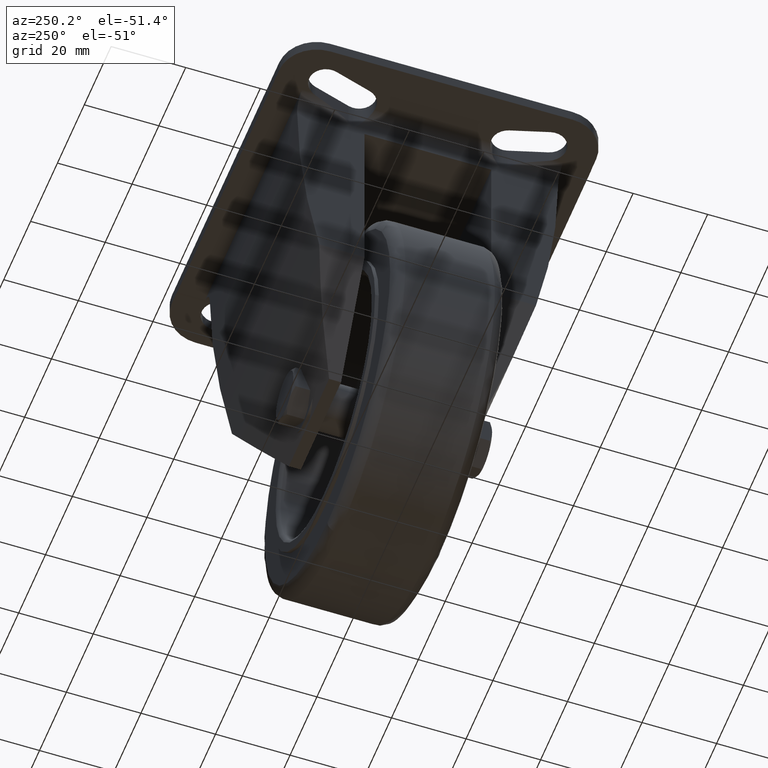
[diagram: clean part render]
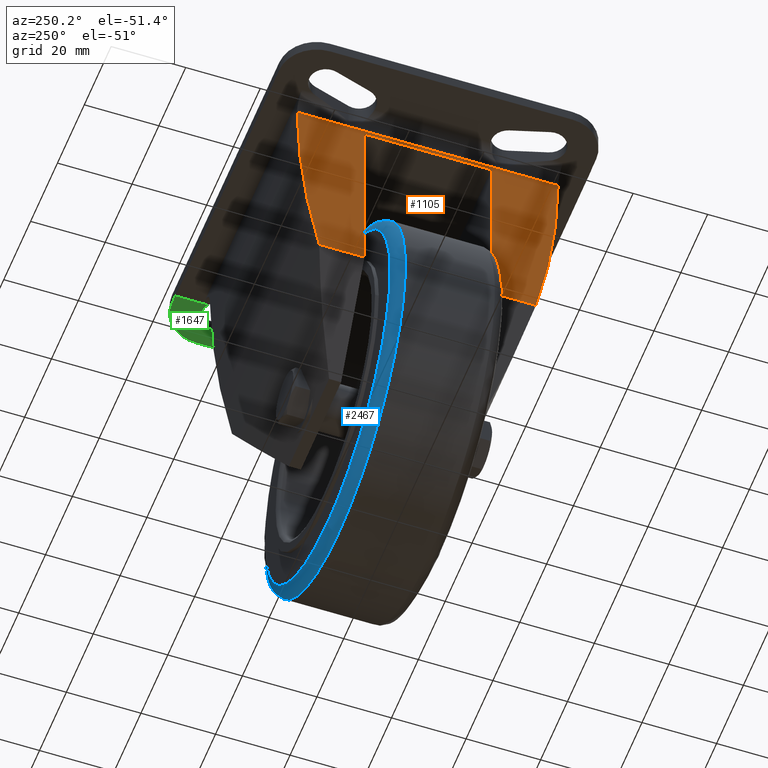
[diagram: same view with three faces highlighted in distinct colors, each labeled with its STEP entity id]
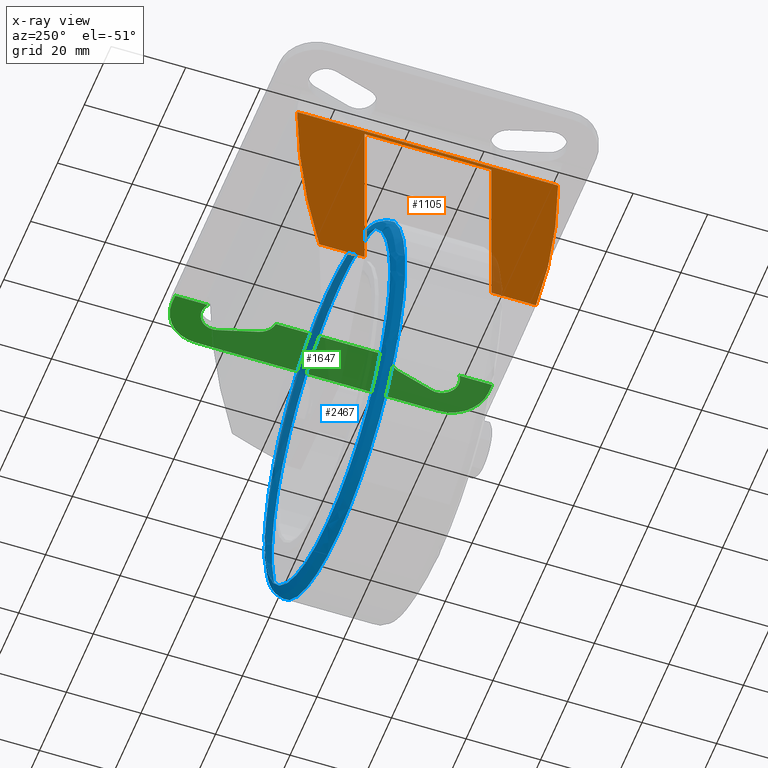
[diagram: x-ray of the same camera — body ghosted, the three highlighted faces saturated]
A machine part, auxiliary view with three faces highlighted in distinct colors.
The next image is the same camera in x-ray (body ghosted, the three faces saturated) — at least one of them is partly hidden behind the body in this view.
Their STEP definitions:

[orange] entity #1105 — the highlighted planar face has unit normal (-1, 0, 0).
#351=CARTESIAN_POINT('',(-82.499999999403371,-20.000010389032809,-8.074899551829729));
#352=VERTEX_POINT('',#351);
#361=CARTESIAN_POINT('',(-82.499999999665306,-34.993228453450087,-8.074899551829729));
#362=VERTEX_POINT('',#361);
#363=CARTESIAN_POINT('',(-82.499999999665306,-20.000010389032809,-8.074899551829729));
#364=DIRECTION('',(0.0,-1.0,0.0));
#365=VECTOR('',#364,14.993218064417277);
#366=LINE('',#363,#365);
#367=EDGE_CURVE('',#352,#362,#366,.T.);
#415=CARTESIAN_POINT('',(-82.499999999665306,35.011934434363553,-8.074899551829732));
#416=VERTEX_POINT('',#415);
#428=CARTESIAN_POINT('',(-82.500000000924047,19.999989617170250,-8.074899551829732));
#429=VERTEX_POINT('',#428);
#430=CARTESIAN_POINT('',(-82.499999999665306,35.011934434363553,-8.074899551829732));
#431=DIRECTION('',(0.0,-1.0,0.0));
#432=VECTOR('',#431,15.011944817193303);
#433=LINE('',#430,#432);
#434=EDGE_CURVE('',#416,#429,#433,.T.);
#506=CARTESIAN_POINT('',(-82.499999999665306,19.999989617170250,-8.074899551829731));
#507=DIRECTION('',(0.0,-1.0,0.0));
#508=VECTOR('',#507,40.000000006203059);
#509=LINE('',#506,#508);
#510=EDGE_CURVE('',#429,#352,#509,.T.);
#545=CARTESIAN_POINT('',(-82.499999999665306,16.929942678674703,-59.074899551626004));
#546=VERTEX_POINT('',#545);
#553=CARTESIAN_POINT('',(-82.499999999665306,29.081470484884729,-59.074899551626004));
#554=VERTEX_POINT('',#553);
#555=CARTESIAN_POINT('',(-82.499999999665306,29.081470484884729,-59.074899551626004));
#556=DIRECTION('',(0.0,-1.0,0.0));
#557=VECTOR('',#556,12.151527806210026);
#558=LINE('',#555,#557);
#559=EDGE_CURVE('',#554,#546,#558,.T.);
#576=CARTESIAN_POINT('',(-82.499999999665306,-17.070057321325297,-59.074899551626004));
#577=VERTEX_POINT('',#576);
#594=CARTESIAN_POINT('',(-82.499999999665306,-29.062285770848494,-59.074899551626004));
#595=VERTEX_POINT('',#594);
#603=CARTESIAN_POINT('',(-82.499999999665306,-17.070057321325297,-59.074899551626004));
#604=DIRECTION('',(0.0,-1.0,0.0));
#605=VECTOR('',#604,11.992228449523196);
#606=LINE('',#603,#605);
#607=EDGE_CURVE('',#577,#595,#606,.T.);
#662=CARTESIAN_POINT('',(-82.499999999665306,202.663913114905850,-6.281902606507186));
#663=DIRECTION('',(1.0,0.0,0.0));
#664=DIRECTION('',(0.0,-0.999921285445875,0.012546828773404));
#665=AXIS2_PLACEMENT_3D('',#662,#663,#664);
#666=CIRCLE('',#665,237.663905077080470);
#667=EDGE_CURVE('',#362,#595,#666,.T.);
#728=CARTESIAN_POINT('',(-82.499999999665306,-202.663913110853170,-6.281902606507174));
#729=DIRECTION('',(1.0,0.0,0.0));
#730=DIRECTION('',(0.0,0.872165457772618,-0.489211012006353));
#731=AXIS2_PLACEMENT_3D('',#728,#729,#730);
#732=CIRCLE('',#731,237.682610521643000);
#733=EDGE_CURVE('',#554,#416,#732,.T.);
#763=CARTESIAN_POINT('',(-82.499999999665306,-17.070057321325294,-9.299980581860835));
#764=VERTEX_POINT('',#763);
#771=CARTESIAN_POINT('',(-82.499999999665306,16.929942678674706,-9.299980581860838));
#772=VERTEX_POINT('',#771);
#773=CARTESIAN_POINT('',(-82.499999999665306,16.929942678674706,-9.299980581860838));
#774=DIRECTION('',(0.0,-1.0,0.0));
#775=VECTOR('',#774,34.0);
#776=LINE('',#773,#775);
#777=EDGE_CURVE('',#772,#764,#776,.T.);
#810=CARTESIAN_POINT('',(-82.499999999665306,-17.070057321325297,-59.074899551626004));
#811=DIRECTION('',(0.0,0.0,1.0));
#812=VECTOR('',#811,49.774918969765167);
#813=LINE('',#810,#812);
#814=EDGE_CURVE('',#577,#764,#813,.T.);
#832=CARTESIAN_POINT('',(-82.499999999665306,16.929942678674703,-59.074899551626004));
#833=DIRECTION('',(0.0,0.0,1.0));
#834=VECTOR('',#833,49.774918969765167);
#835=LINE('',#832,#834);
#836=EDGE_CURVE('',#546,#772,#835,.T.);
#1088=CARTESIAN_POINT('',(-82.499999999665306,42.499989609830664,-8.074899551829732));
#1089=DIRECTION('',(-1.0,0.0,0.0));
#1090=DIRECTION('',(0.0,0.0,-1.0));
#1091=AXIS2_PLACEMENT_3D('',#1088,#1089,#1090);
#1092=PLANE('',#1091);
#1093=ORIENTED_EDGE('',*,*,#836,.T.);
#1094=ORIENTED_EDGE('',*,*,#777,.T.);
#1095=ORIENTED_EDGE('',*,*,#814,.F.);
#1096=ORIENTED_EDGE('',*,*,#607,.T.);
#1097=ORIENTED_EDGE('',*,*,#667,.F.);
#1098=ORIENTED_EDGE('',*,*,#367,.F.);
#1099=ORIENTED_EDGE('',*,*,#510,.F.);
#1100=ORIENTED_EDGE('',*,*,#434,.F.);
#1101=ORIENTED_EDGE('',*,*,#733,.F.);
#1102=ORIENTED_EDGE('',*,*,#559,.T.);
#1103=EDGE_LOOP('',(#1093,#1094,#1095,#1096,#1097,#1098,#1099,#1100,#1101,#1102));
#1104=FACE_OUTER_BOUND('',#1103,.T.);
#1105=ADVANCED_FACE('',(#1104),#1092,.T.);

[blue] entity #2467 — the highlighted face is a freeform B-spline surface patch.
#1784=CARTESIAN_POINT('',(-49.499989609626937,14.999999999937840,-126.775115933132840));
#1785=VERTEX_POINT('',#1784);
#1786=CARTESIAN_POINT('',(-49.499989609626937,14.999999999937852,-33.375038781330367));
#1787=VERTEX_POINT('',#1786);
#1788=CARTESIAN_POINT('',(-49.499989609626937,14.999999999937847,-80.075077357231748));
#1789=DIRECTION('',(-3.157968E-016,1.0,-1.224647E-016));
#1790=DIRECTION('',(0.0,-1.224647E-016,-1.0));
#1791=AXIS2_PLACEMENT_3D('',#1788,#1789,#1790);
#1792=CIRCLE('',#1791,46.700038575901381);
#1793=EDGE_CURVE('',#1785,#1787,#1792,.T.);
#1795=CARTESIAN_POINT('',(-49.499989609626937,14.999999999937847,-80.075077357231748));
#1796=DIRECTION('',(-3.157968E-016,1.0,-1.224647E-016));
#1797=DIRECTION('',(0.0,-1.224647E-016,-1.0));
#1798=AXIS2_PLACEMENT_3D('',#1795,#1796,#1797);
#1799=CIRCLE('',#1798,46.700038575901381);
#1800=EDGE_CURVE('',#1787,#1785,#1799,.T.);
#1832=CARTESIAN_POINT('',(-49.499989609626937,11.999999999937840,-129.775115933132840));
#1833=VERTEX_POINT('',#1832);
#1840=CARTESIAN_POINT('',(-49.499989609626937,11.999999999937852,-30.375038781330367));
#1841=VERTEX_POINT('',#1840);
#1842=CARTESIAN_POINT('',(-49.499989609626937,11.999999999937847,-80.075077357231748));
#1843=DIRECTION('',(-3.157968E-016,1.0,-1.224647E-016));
#1844=DIRECTION('',(0.0,-1.224647E-016,-1.0));
#1845=AXIS2_PLACEMENT_3D('',#1842,#1843,#1844);
#1846=CIRCLE('',#1845,49.700038575901381);
#1847=EDGE_CURVE('',#1841,#1833,#1846,.T.);
#1849=CARTESIAN_POINT('',(-49.499989609626937,11.999999999937847,-80.075077357231748));
#1850=DIRECTION('',(-3.157968E-016,1.0,-1.224647E-016));
#1851=DIRECTION('',(0.0,-1.224647E-016,-1.0));
#1852=AXIS2_PLACEMENT_3D('',#1849,#1850,#1851);
#1853=CIRCLE('',#1852,49.700038575901381);
#1854=EDGE_CURVE('',#1833,#1841,#1853,.T.);
#2179=CARTESIAN_POINT('',(-49.499989609626937,11.999999999937840,-129.775115933133120));
#2180=CARTESIAN_POINT('',(-49.499989609626937,12.390180643970096,-129.775115933133120));
#2181=CARTESIAN_POINT('',(-49.499989609626930,13.179083451967667,-129.618999604785810));
#2182=CARTESIAN_POINT('',(-49.499989609626937,14.176238734356676,-128.951354667551950));
#2183=CARTESIAN_POINT('',(-49.499989609626937,14.843883671590504,-127.954199385162950));
#2184=CARTESIAN_POINT('',(-49.499989609626937,14.999999999937840,-127.165296577165380));
#2185=CARTESIAN_POINT('',(-49.499989609626937,14.999999999937840,-126.775115933133120));
#2186=CARTESIAN_POINT('',(-52.747626713279402,11.999999999937838,-129.775115933133120));
#2187=CARTESIAN_POINT('',(-52.747626713279402,12.390180643970094,-129.775115933133120));
#2188=CARTESIAN_POINT('',(-52.737425329237155,13.179083451967665,-129.618999604785810));
#2189=CARTESIAN_POINT('',(-52.693798230901727,14.176238734356675,-128.951354667551950));
#2190=CARTESIAN_POINT('',(-52.628639358072192,14.843883671590502,-127.954199385162970));
#2191=CARTESIAN_POINT('',(-52.577088693246942,14.999999999937838,-127.165296577165380));
#2192=CARTESIAN_POINT('',(-52.551592432620282,14.999999999937840,-126.775115933133120));
#2193=CARTESIAN_POINT('',(-59.259826415704723,11.999999999937838,-129.134991146755060));
#2194=CARTESIAN_POINT('',(-59.259826415704723,12.390180643970087,-129.134991146755060));
#2195=CARTESIAN_POINT('',(-59.229169097700677,13.179083451967657,-128.980885559932230));
#2196=CARTESIAN_POINT('',(-59.098060434236487,14.176238734356662,-128.321839732177410));
#2197=CARTESIAN_POINT('',(-58.902244231567465,14.843883671590486,-127.337527574872720));
#2198=CARTESIAN_POINT('',(-58.747323573907337,14.999999999937829,-126.558785649158350));
#2199=CARTESIAN_POINT('',(-58.670701914855115,14.999999999937833,-126.173630439885630));
#2200=CARTESIAN_POINT('',(-67.082761094596691,11.999999999937828,-126.760024867695220));
#2201=CARTESIAN_POINT('',(-67.082761094596691,12.390180643970087,-126.760024867695220));
#2202=CARTESIAN_POINT('',(-67.027530599710602,13.179083451967660,-126.613379456479110));
#2203=CARTESIAN_POINT('',(-66.791332626814693,14.176238734356673,-125.986237712860730));
#2204=CARTESIAN_POINT('',(-66.438561201124529,14.843883671590500,-125.049575622608670));
#2205=CARTESIAN_POINT('',(-66.159464882603800,14.999999999937833,-124.308532210218220));
#2206=CARTESIAN_POINT('',(-66.021427623509908,14.999999999937833,-123.942022175051420));
#2207=CARTESIAN_POINT('',(-72.965853382425522,11.999999999937836,-123.977099329290790));
#2208=CARTESIAN_POINT('',(-72.965853382425522,12.390180643970091,-123.977099329290790));
#2209=CARTESIAN_POINT('',(-72.892143087651519,13.179083451967662,-123.839195563545500));
#2210=CARTESIAN_POINT('',(-72.576914657359637,14.176238734356669,-123.249438220415730));
#2211=CARTESIAN_POINT('',(-72.106107980195162,14.843883671590493,-122.368611275983000));
#2212=CARTESIAN_POINT('',(-71.733627669255796,14.999999999937831,-121.671742029943400));
#2213=CARTESIAN_POINT('',(-71.549403952293062,14.999999999937831,-121.327079939164220));
#2214=CARTESIAN_POINT('',(-77.156265007659925,11.999999999937828,-121.465640681328580));
#2215=CARTESIAN_POINT('',(-77.156265007659925,12.390180643970085,-121.465640681328580));
#2216=CARTESIAN_POINT('',(-77.069391912696219,13.179083451967648,-121.335625837084180));
#2217=CARTESIAN_POINT('',(-76.697871632605484,14.176238734356673,-120.779606146870360));
#2218=CARTESIAN_POINT('',(-76.142990753343383,14.843883671590493,-119.949167780174750));
#2219=CARTESIAN_POINT('',(-75.703994850212638,14.999999999937836,-119.292163629541860));
#2220=CARTESIAN_POINT('',(-75.486873422231085,14.999999999937836,-118.967218275022900));
#2221=CARTESIAN_POINT('',(-81.080196320876851,11.999999999937833,-118.555232925542880));
#2222=CARTESIAN_POINT('',(-81.080196320876851,12.390180643970089,-118.555232925542880));
#2223=CARTESIAN_POINT('',(-80.980997485997051,13.179083451967653,-118.434360170235410));
#2224=CARTESIAN_POINT('',(-80.556765116531892,14.176238734356666,-117.917437411515240));
#2225=CARTESIAN_POINT('',(-79.923156555183056,14.843883671590493,-117.145391926409730));
#2226=CARTESIAN_POINT('',(-79.421874977431344,14.999999999937831,-116.534585503520090));
#2227=CARTESIAN_POINT('',(-79.173947898371836,14.999999999937831,-116.232488919446500));
#2228=CARTESIAN_POINT('',(-85.902510515728565,11.999999999937826,-114.185273008425270));
#2229=CARTESIAN_POINT('',(-85.902510515728565,12.390180643970083,-114.185273008425270));
#2230=CARTESIAN_POINT('',(-85.788163966524749,13.179083451967648,-114.078127045225530));
#2231=CARTESIAN_POINT('',(-85.299151090842884,14.176238734356666,-113.619908096365170));
#2232=CARTESIAN_POINT('',(-84.568790168519570,14.843883671590490,-112.935539175303550));
#2233=CARTESIAN_POINT('',(-83.990962629871817,14.999999999937828,-112.394098365565000));
#2234=CARTESIAN_POINT('',(-83.705176955282255,14.999999999937831,-112.126309074276560));
#2235=CARTESIAN_POINT('',(-91.091389668645718,11.999999999937831,-107.864177520596770));
#2236=CARTESIAN_POINT('',(-91.091389668645718,12.390180643970083,-107.864177520596770));
#2237=CARTESIAN_POINT('',(-90.960743961839626,13.179083451967646,-107.776887200309550));
#2238=CARTESIAN_POINT('',(-90.402026333492842,14.176238734356653,-107.403582620152700));
#2239=CARTESIAN_POINT('',(-89.567558484791562,14.843883671590490,-106.846036815064020));
#2240=CARTESIAN_POINT('',(-88.907366395704898,14.999999999937824,-106.404932546762080));
#2241=CARTESIAN_POINT('',(-88.580844330003742,14.999999999937829,-106.186768349922260));
#2242=CARTESIAN_POINT('',(-95.712573632165999,11.999999999937824,-99.217263162531026));
#2243=CARTESIAN_POINT('',(-95.712573632165999,12.390180643970083,-99.217263162531026));
#2244=CARTESIAN_POINT('',(-95.567411995520104,13.179083451967657,-99.157134280339037));
#2245=CARTESIAN_POINT('',(-94.946615741770316,14.176238734356671,-98.899987931831106));
#2246=CARTESIAN_POINT('',(-94.019430902656964,14.843883671590490,-98.515929242156744));
#2247=CARTESIAN_POINT('',(-93.285885449879785,14.999999999937826,-98.212079897855915));
#2248=CARTESIAN_POINT('',(-92.923083803986259,14.999999999937822,-98.061800127463187));
#2249=CARTESIAN_POINT('',(-98.559343892231922,11.999999999937831,-89.833522078089459));
#2250=CARTESIAN_POINT('',(-98.559343892231922,12.390180643970089,-89.833522078089459));
#2251=CARTESIAN_POINT('',(-98.405240062916107,13.179083451967660,-89.802869132863393));
#2252=CARTESIAN_POINT('',(-97.746201751291409,14.176238734356666,-89.671779169961127));
#2253=CARTESIAN_POINT('',(-96.761900819637589,14.843883671590493,-89.475990897353540));
#2254=CARTESIAN_POINT('',(-95.983167775135200,14.999999999937833,-89.321092336656946));
#2255=CARTESIAN_POINT('',(-95.598016958389678,14.999999999937833,-89.244481606463580));
#2256=CARTESIAN_POINT('',(-99.520386080968805,11.999999999937826,-80.075091848421238));
#2257=CARTESIAN_POINT('',(-99.520386080968805,12.390180643970083,-80.075091848421238));
#2258=CARTESIAN_POINT('',(-99.363263453636037,13.179083451967646,-80.075091802901909));
#2259=CARTESIAN_POINT('',(-98.691314992036467,14.176238734356671,-80.075091608234686));
#2260=CARTESIAN_POINT('',(-97.687732218304333,14.843883671590490,-80.075091317491086));
#2261=CARTESIAN_POINT('',(-96.893744278574189,14.999999999937828,-80.075091087468337));
#2262=CARTESIAN_POINT('',(-96.501048597259341,14.999999999937828,-80.075090973702217));
#2263=CARTESIAN_POINT('',(-98.559280897062649,11.999999999937836,-70.316574671616124));
#2264=CARTESIAN_POINT('',(-98.559280897062649,12.390180643970089,-70.316574671616124));
#2265=CARTESIAN_POINT('',(-98.405177265625440,13.179083451967667,-70.347227798919391));
#2266=CARTESIAN_POINT('',(-97.746139800245672,14.176238734356669,-70.478318540490633));
#2267=CARTESIAN_POINT('',(-96.761840132493631,14.843883671590497,-70.674107976072463));
#2268=CARTESIAN_POINT('',(-95.983108087931441,14.999999999937836,-70.829007456860126));
#2269=CARTESIAN_POINT('',(-95.597957765742777,14.999999999937836,-70.905618642118014));
#2270=CARTESIAN_POINT('',(-95.712825612843119,11.999999999937831,-60.933094428585335));
#2271=CARTESIAN_POINT('',(-95.712825612843119,12.390180643970089,-60.933094428585335));
#2272=CARTESIAN_POINT('',(-95.567663184682814,13.179083451967658,-60.993222673507013));
#2273=CARTESIAN_POINT('',(-94.946863545953249,14.176238734356671,-61.250366296673626));
#2274=CARTESIAN_POINT('',(-94.019673651232921,14.843883671590499,-61.634420915938129));
#2275=CARTESIAN_POINT('',(-93.286124198694978,14.999999999937835,-61.938267039920269));
#2276=CARTESIAN_POINT('',(-92.923320574573964,14.999999999937835,-62.088545217587018));
#2277=CARTESIAN_POINT('',(-91.090444741106609,11.999999999937838,-52.285223652013165));
#2278=CARTESIAN_POINT('',(-91.090444741106609,12.390180643970091,-52.285223652013165));
#2279=CARTESIAN_POINT('',(-90.959802002479620,13.179083451967660,-52.372516339304369));
#2280=CARTESIAN_POINT('',(-90.401097067806916,14.176238734356680,-52.745831042157633));
#2281=CARTESIAN_POINT('',(-89.566648177631834,14.843883671590495,-53.303391965911402));
#2282=CARTESIAN_POINT('',(-88.906471087648015,14.999999999937835,-53.744508195396961));
#2283=CARTESIAN_POINT('',(-88.579956440299966,14.999999999937835,-53.962678308076150));
#2284=CARTESIAN_POINT('',(-84.869763917249671,11.999999999937838,-44.705303030572004));
#2285=CARTESIAN_POINT('',(-84.869763917249671,12.390180643970096,-44.705303030572004));
#2286=CARTESIAN_POINT('',(-84.758661401887466,13.179083451967662,-44.816405545993987));
#2287=CARTESIAN_POINT('',(-84.283521916602751,14.176238734356673,-45.291545031534476));
#2288=CARTESIAN_POINT('',(-83.573881475702649,14.843883671590495,-46.001185472816502));
#2289=CARTESIAN_POINT('',(-83.012447016715072,14.999999999937835,-46.562619932106280));
#2290=CARTESIAN_POINT('',(-82.734769137299608,14.999999999937835,-46.840297811671221));
#2291=CARTESIAN_POINT('',(-77.289843061173485,11.999999999937842,-38.484622555572159));
#2292=CARTESIAN_POINT('',(-77.289843061173485,12.390180643970099,-38.484622555572159));
#2293=CARTESIAN_POINT('',(-77.202550374679063,13.179083451967671,-38.615265293163091));
#2294=CARTESIAN_POINT('',(-76.829235675233548,14.176238734356684,-39.173970223405234));
#2295=CARTESIAN_POINT('',(-76.271674756569311,14.843883671590511,-40.008419106962954));
#2296=CARTESIAN_POINT('',(-75.830558531110356,14.999999999937838,-40.668596191711416));
#2297=CARTESIAN_POINT('',(-75.612388420422661,14.999999999937838,-40.995110836470154));
#2298=CARTESIAN_POINT('',(-68.641973571998477,11.999999999937845,-33.862240053772283));
#2299=CARTESIAN_POINT('',(-68.641973571998477,12.390180643970098,-33.862240053772283));
#2300=CARTESIAN_POINT('',(-68.581845323829725,13.179083451967669,-34.007402486016886));
#2301=CARTESIAN_POINT('',(-68.324701686776606,14.176238734356682,-34.628202142213226));
#2302=CARTESIAN_POINT('',(-67.940647046771971,14.843883671590502,-35.555392063020918));
#2303=CARTESIAN_POINT('',(-67.636800906381183,14.999999999937845,-36.288941536198024));
#2304=CARTESIAN_POINT('',(-67.486522720598956,14.999999999937845,-36.651745170526880));
#2305=CARTESIAN_POINT('',(-59.258488414013982,11.999999999937849,-31.015790940949095));
#2306=CARTESIAN_POINT('',(-59.258488414013982,12.390180643970108,-31.015790940949095));
#2307=CARTESIAN_POINT('',(-59.227835298902278,13.179083451967678,-31.169894557085186));
#2308=CARTESIAN_POINT('',(-59.096744609469489,14.176238734356687,-31.828931957028352));
#2309=CARTESIAN_POINT('',(-58.900955251758589,14.843883671590518,-32.813231527048202));
#2310=CARTESIAN_POINT('',(-58.746055832578804,14.999999999937851,-33.591963494289161));
#2311=CARTESIAN_POINT('',(-58.669444677791290,14.999999999937851,-33.977113778235818));
#2312=CARTESIAN_POINT('',(-49.499989609626937,11.999999999937851,-30.054662701521000));
#2313=CARTESIAN_POINT('',(-49.499989609626937,12.390180643970105,-30.054662701521000));
#2314=CARTESIAN_POINT('',(-49.499989609626937,13.179083451967674,-30.211785385973965));
#2315=CARTESIAN_POINT('',(-49.499989609626944,14.176238734356691,-30.883734091853107));
#2316=CARTESIAN_POINT('',(-49.499989609626965,14.843883671590511,-31.887317230426714));
#2317=CARTESIAN_POINT('',(-49.499989609626937,14.999999999937849,-32.681305458802584));
#2318=CARTESIAN_POINT('',(-49.499989609626930,14.999999999937849,-33.074001282877646));
#2319=CARTESIAN_POINT('',(-39.741490805239920,11.999999999937854,-31.015790940949095));
#2320=CARTESIAN_POINT('',(-39.741490805239920,12.390180643970110,-31.015790940949095));
#2321=CARTESIAN_POINT('',(-39.772143920351617,13.179083451967683,-31.169894557085179));
#2322=CARTESIAN_POINT('',(-39.903234609784413,14.176238734356694,-31.828931957028360));
#2323=CARTESIAN_POINT('',(-40.099023967495285,14.843883671590520,-32.813231527048202));
#2324=CARTESIAN_POINT('',(-40.253923386675112,14.999999999937856,-33.591963494289161));
#2325=CARTESIAN_POINT('',(-40.330534541462626,14.999999999937856,-33.977113778235818));
#2326=CARTESIAN_POINT('',(-30.358005647255368,11.999999999937858,-33.862240053772275));
#2327=CARTESIAN_POINT('',(-30.358005647255368,12.390180643970114,-33.862240053772275));
#2328=CARTESIAN_POINT('',(-30.418133895424130,13.179083451967685,-34.007402486016886));
#2329=CARTESIAN_POINT('',(-30.675277532477260,14.176238734356691,-34.628202142213233));
#2330=CARTESIAN_POINT('',(-31.059332172481913,14.843883671590522,-35.555392063020918));
#2331=CARTESIAN_POINT('',(-31.363178312872670,14.999999999937856,-36.288941536198024));
#2332=CARTESIAN_POINT('',(-31.513456498654890,14.999999999937856,-36.651745170526887));
#2333=CARTESIAN_POINT('',(-21.710136158080417,11.999999999937859,-38.484622555572152));
#2334=CARTESIAN_POINT('',(-21.710136158080417,12.390180643970115,-38.484622555572152));
#2335=CARTESIAN_POINT('',(-21.797428844574817,13.179083451967685,-38.615265293163084));
#2336=CARTESIAN_POINT('',(-22.170743544020379,14.176238734356701,-39.173970223405234));
#2337=CARTESIAN_POINT('',(-22.728304462684584,14.843883671590524,-40.008419106962940));
#2338=CARTESIAN_POINT('',(-23.169420688143536,14.999999999937859,-40.668596191711408));
#2339=CARTESIAN_POINT('',(-23.387590798831219,14.999999999937859,-40.995110836470147));
#2340=CARTESIAN_POINT('',(-14.130215302004181,11.999999999937863,-44.705303030571969));
#2341=CARTESIAN_POINT('',(-14.130215302004181,12.390180643970115,-44.705303030571969));
#2342=CARTESIAN_POINT('',(-14.241317817366365,13.179083451967683,-44.816405545993938));
#2343=CARTESIAN_POINT('',(-14.716457302651129,14.176238734356703,-45.291545031534461));
#2344=CARTESIAN_POINT('',(-15.426097743551214,14.843883671590518,-46.001185472816459));
#2345=CARTESIAN_POINT('',(-15.987532202538802,14.999999999937859,-46.562619932106266));
#2346=CARTESIAN_POINT('',(-16.265210081954280,14.999999999937859,-46.840297811671199));
#2347=CARTESIAN_POINT('',(-7.909534478147298,11.999999999937861,-52.285223652013144));
#2348=CARTESIAN_POINT('',(-7.909534478147298,12.390180643970119,-52.285223652013144));
#2349=CARTESIAN_POINT('',(-8.040177216774254,13.179083451967685,-52.372516339304383));
#2350=CARTESIAN_POINT('',(-8.598882151447020,14.176238734356701,-52.745831042157640));
#2351=CARTESIAN_POINT('',(-9.433331041622067,14.843883671590525,-53.303391965911388));
#2352=CARTESIAN_POINT('',(-10.093508131605867,14.999999999937859,-53.744508195396932));
#2353=CARTESIAN_POINT('',(-10.420022778953928,14.999999999937859,-53.962678308076136));
#2354=CARTESIAN_POINT('',(-3.287153606410739,11.999999999937859,-60.933094428585335));
#2355=CARTESIAN_POINT('',(-3.287153606410739,12.390180643970114,-60.933094428585335));
#2356=CARTESIAN_POINT('',(-3.432316034571068,13.179083451967681,-60.993222673506978));
#2357=CARTESIAN_POINT('',(-4.053115673300613,14.176238734356700,-61.250366296673576));
#2358=CARTESIAN_POINT('',(-4.980305568020903,14.843883671590522,-61.634420915938122));
#2359=CARTESIAN_POINT('',(-5.713855020558872,14.999999999937856,-61.938267039920277));
#2360=CARTESIAN_POINT('',(-6.076658644679901,14.999999999937856,-62.088545217587018));
#2361=CARTESIAN_POINT('',(-0.440698322191266,11.999999999937861,-70.316574671616053));
#2362=CARTESIAN_POINT('',(-0.440698322191266,12.390180643970119,-70.316574671616053));
#2363=CARTESIAN_POINT('',(-0.594801953628499,13.179083451967685,-70.347227798919334));
#2364=CARTESIAN_POINT('',(-1.253839419008203,14.176238734356701,-70.478318540490591));
#2365=CARTESIAN_POINT('',(-2.238139086760337,14.843883671590525,-70.674107976072392));
#2366=CARTESIAN_POINT('',(-3.016871131322473,14.999999999937859,-70.829007456860055));
#2367=CARTESIAN_POINT('',(-3.402021453511142,14.999999999937859,-70.905618642117958));
#2368=CARTESIAN_POINT('',(0.520406861714976,11.999999999937863,-80.075091848421224));
#2369=CARTESIAN_POINT('',(0.520406861714976,12.390180643970119,-80.075091848421224));
#2370=CARTESIAN_POINT('',(0.363284234382236,13.179083451967685,-80.075091802901895));
#2371=CARTESIAN_POINT('',(-0.308664227217404,14.176238734356703,-80.075091608234686));
#2372=CARTESIAN_POINT('',(-1.312247000949429,14.843883671590522,-80.075091317491129));
#2373=CARTESIAN_POINT('',(-2.106234940679665,14.999999999937859,-80.075091087468380));
#2374=CARTESIAN_POINT('',(-2.498930621994496,14.999999999937859,-80.075090973702203));
#2375=CARTESIAN_POINT('',(-0.440635327021974,11.999999999937861,-89.833522078089473));
#2376=CARTESIAN_POINT('',(-0.440635327021973,12.390180643970117,-89.833522078089473));
#2377=CARTESIAN_POINT('',(-0.594739156337817,13.179083451967685,-89.802869132863393));
#2378=CARTESIAN_POINT('',(-1.253777467962454,14.176238734356705,-89.671779169961141));
#2379=CARTESIAN_POINT('',(-2.238078399616339,14.843883671590522,-89.475990897353540));
#2380=CARTESIAN_POINT('',(-3.016811444118665,14.999999999937861,-89.321092336656932));
#2381=CARTESIAN_POINT('',(-3.401962260864207,14.999999999937861,-89.244481606463609));
#2382=CARTESIAN_POINT('',(-3.287405587087873,11.999999999937856,-99.217263162531012));
#2383=CARTESIAN_POINT('',(-3.287405587087873,12.390180643970112,-99.217263162531012));
#2384=CARTESIAN_POINT('',(-3.432567223733761,13.179083451967683,-99.157134280339065));
#2385=CARTESIAN_POINT('',(-4.053363477483570,14.176238734356685,-98.899987931831134));
#2386=CARTESIAN_POINT('',(-4.980548316596861,14.843883671590522,-98.515929242156759));
#2387=CARTESIAN_POINT('',(-5.714093769374067,14.999999999937856,-98.212079897855986));
#2388=CARTESIAN_POINT('',(-6.076895415267602,14.999999999937856,-98.061800127463229));
#2389=CARTESIAN_POINT('',(-7.908589550608089,11.999999999937858,-107.864177520596750));
#2390=CARTESIAN_POINT('',(-7.908589550608089,12.390180643970115,-107.864177520596750));
#2391=CARTESIAN_POINT('',(-8.039235257414202,13.179083451967688,-107.776887200309490));
#2392=CARTESIAN_POINT('',(-8.597952885760954,14.176238734356700,-107.403582620152680));
#2393=CARTESIAN_POINT('',(-9.432420734462287,14.843883671590518,-106.846036815063980));
#2394=CARTESIAN_POINT('',(-10.092612823548915,14.999999999937854,-106.404932546762010));
#2395=CARTESIAN_POINT('',(-10.419134889250088,14.999999999937854,-106.186768349922200));
#2396=CARTESIAN_POINT('',(-13.097468703525340,11.999999999937854,-114.185273008425280));
#2397=CARTESIAN_POINT('',(-13.097468703525340,12.390180643970112,-114.185273008425280));
#2398=CARTESIAN_POINT('',(-13.211815252729092,13.179083451967681,-114.078127045225600));
#2399=CARTESIAN_POINT('',(-13.700828128411080,14.176238734356698,-113.619908096365220));
#2400=CARTESIAN_POINT('',(-14.431189050734332,14.843883671590520,-112.935539175303560));
#2401=CARTESIAN_POINT('',(-15.009016589382115,14.999999999937854,-112.394098365565040));
#2402=CARTESIAN_POINT('',(-15.294802263971663,14.999999999937854,-112.126309074276590));
#2403=CARTESIAN_POINT('',(-17.919782898377001,11.999999999937849,-118.555232925542840));
#2404=CARTESIAN_POINT('',(-17.919782898377001,12.390180643970103,-118.555232925542840));
#2405=CARTESIAN_POINT('',(-18.018981733256794,13.179083451967678,-118.434360170235290));
#2406=CARTESIAN_POINT('',(-18.443214102721939,14.176238734356687,-117.917437411515180));
#2407=CARTESIAN_POINT('',(-19.076822664070797,14.843883671590511,-117.145391926409700));
#2408=CARTESIAN_POINT('',(-19.578104241822512,14.999999999937851,-116.534585503520050));
#2409=CARTESIAN_POINT('',(-19.826031320882006,14.999999999937851,-116.232488919446450));
#2410=CARTESIAN_POINT('',(-21.843714211593905,11.999999999937847,-121.465640681328570));
#2411=CARTESIAN_POINT('',(-21.843714211593905,12.390180643970105,-121.465640681328570));
#2412=CARTESIAN_POINT('',(-21.930587306557605,13.179083451967671,-121.335625837084180));
#2413=CARTESIAN_POINT('',(-22.302107586648372,14.176238734356684,-120.779606146870380));
#2414=CARTESIAN_POINT('',(-22.856988465910430,14.843883671590513,-119.949167780174720));
#2415=CARTESIAN_POINT('',(-23.295984369041211,14.999999999937849,-119.292163629541850));
#2416=CARTESIAN_POINT('',(-23.513105797022760,14.999999999937849,-118.967218275022900));
#2417=CARTESIAN_POINT('',(-26.034125836828402,11.999999999937845,-123.977099329290780));
#2418=CARTESIAN_POINT('',(-26.034125836828402,12.390180643970103,-123.977099329290780));
#2419=CARTESIAN_POINT('',(-26.107836131602379,13.179083451967673,-123.839195563545470));
#2420=CARTESIAN_POINT('',(-26.423064561894279,14.176238734356692,-123.249438220415670));
#2421=CARTESIAN_POINT('',(-26.893871239058761,14.843883671590506,-122.368611275983000));
#2422=CARTESIAN_POINT('',(-27.266351549998099,14.999999999937847,-121.671742029943400));
#2423=CARTESIAN_POINT('',(-27.450575266960833,14.999999999937847,-121.327079939164180));
#2424=CARTESIAN_POINT('',(-31.917218124657055,11.999999999937843,-126.760024867695250));
#2425=CARTESIAN_POINT('',(-31.917218124657055,12.390180643970099,-126.760024867695250));
#2426=CARTESIAN_POINT('',(-31.972448619543123,13.179083451967662,-126.613379456479080));
#2427=CARTESIAN_POINT('',(-32.208646592439095,14.176238734356676,-125.986237712860810));
#2428=CARTESIAN_POINT('',(-32.561418018129245,14.843883671590502,-125.049575622608730));
#2429=CARTESIAN_POINT('',(-32.840514336649996,14.999999999937843,-124.308532210218260));
#2430=CARTESIAN_POINT('',(-32.978551595743873,14.999999999937843,-123.942022175051480));
#2431=CARTESIAN_POINT('',(-39.740152803549151,11.999999999937842,-129.134991146755030));
#2432=CARTESIAN_POINT('',(-39.740152803549151,12.390180643970098,-129.134991146755030));
#2433=CARTESIAN_POINT('',(-39.770810121553168,13.179083451967667,-128.980885559932090));
#2434=CARTESIAN_POINT('',(-39.901918785017415,14.176238734356680,-128.321839732177440));
#2435=CARTESIAN_POINT('',(-40.097734987686408,14.843883671590502,-127.337527574872610));
#2436=CARTESIAN_POINT('',(-40.252655645346522,14.999999999937836,-126.558785649158300));
#2437=CARTESIAN_POINT('',(-40.329277304398744,14.999999999937838,-126.173630439885570));
#2438=CARTESIAN_POINT('',(-46.252352505974457,11.999999999937842,-129.775115933133120));
#2439=CARTESIAN_POINT('',(-46.252352505974457,12.390180643970098,-129.775115933133120));
#2440=CARTESIAN_POINT('',(-46.262553890016676,13.179083451967669,-129.618999604785810));
#2441=CARTESIAN_POINT('',(-46.306180988352153,14.176238734356678,-128.951354667551950));
#2442=CARTESIAN_POINT('',(-46.371339861181660,14.843883671590506,-127.954199385162940));
#2443=CARTESIAN_POINT('',(-46.422890526006917,14.999999999937842,-127.165296577165380));
#2444=CARTESIAN_POINT('',(-46.448386786633577,14.999999999937840,-126.775115933133120));
#2445=CARTESIAN_POINT('',(-49.499989609626923,11.999999999937840,-129.775115933133120));
#2446=CARTESIAN_POINT('',(-49.499989609626923,12.390180643970096,-129.775115933133120));
#2447=CARTESIAN_POINT('',(-49.499989609626915,13.179083451967667,-129.618999604785810));
#2448=CARTESIAN_POINT('',(-49.499989609626937,14.176238734356676,-128.951354667551950));
#2449=CARTESIAN_POINT('',(-49.499989609626915,14.843883671590504,-127.954199385162950));
#2450=CARTESIAN_POINT('',(-49.499989609626923,14.999999999937840,-127.165296577165380));
#2451=CARTESIAN_POINT('',(-49.499989609626923,14.999999999937840,-126.775115933133120));
#2452=B_SPLINE_SURFACE_WITH_KNOTS('',3,3,((#2179,#2186,#2193,#2200,#2207,#2214,#2221,#2228,#2235,#2242,#2249,#2256,#2263,#2270,#2277,#2284,#2291,#2298,#2305,#2312,#2319,#2326,#2333,#2340,#2347,#2354,#2361,#2368,#2375,#2382,#2389,#2396,#2403,#2410,#2417,#2424,#2431,#2438,#2445),(#2180,#2187,#2194,#2201,#2208,#2215,#2222,#2229,#2236,#2243,#2250,#2257,#2264,#2271,#2278,#2285,#2292,#2299,#2306,#2313,#2320,#2327,#2334,#2341,#2348,#2355,#2362,#2369,#2376,#2383,#2390,#2397,#2404,#2411,#2418,#2425,#2432,#2439,#2446),(#2181,#2188,#2195,#2202,#2209,#2216,#2223,#2230,#2237,#2244,#2251,#2258,#2265,#2272,#2279,#2286,#2293,#2300,#2307,#2314,#2321,#2328,#2335,#2342,#2349,#2356,#2363,#2370,#2377,#2384,#2391,#2398,#2405,#2412,#2419,#2426,#2433,#2440,#2447),(#2182,#2189,#2196,#2203,#2210,#2217,#2224,#2231,#2238,#2245,#2252,#2259,#2266,#2273,#2280,#2287,#2294,#2301,#2308,#2315,#2322,#2329,#2336,#2343,#2350,#2357,#2364,#2371,#2378,#2385,#2392,#2399,#2406,#2413,#2420,#2427,#2434,#2441,#2448),(#2183,#2190,#2197,#2204,#2211,#2218,#2225,#2232,#2239,#2246,#2253,#2260,#2267,#2274,#2281,#2288,#2295,#2302,#2309,#2316,#2323,#2330,#2337,#2344,#2351,#2358,#2365,#2372,#2379,#2386,#2393,#2400,#2407,#2414,#2421,#2428,#2435,#2442,#2449),(#2184,#2191,#2198,#2205,#2212,#2219,#2226,#2233,#2240,#2247,#2254,#2261,#2268,#2275,#2282,#2289,#2296,#2303,#2310,#2317,#2324,#2331,#2338,#2345,#2352,#2359,#2366,#2373,#2380,#2387,#2394,#2401,#2408,#2415,#2422,#2429,#2436,#2443,#2450),(#2185,#2192,#2199,#2206,#2213,#2220,#2227,#2234,#2241,#2248,#2255,#2262,#2269,#2276,#2283,#2290,#2297,#2304,#2311,#2318,#2325,#2332,#2339,#2346,#2353,#2360,#2367,#2374,#2381,#2388,#2395,#2402,#2409,#2416,#2423,#2430,#2437,#2444,#2451)),.UNSPECIFIED.,.F.,.T.,.U.,(4,1,1,1,4),(4,1,1,1,1,1,1,1,1,1,1,1,1,1,1,1,1,1,1,1,1,1,1,1,1,1,1,1,1,1,1,1,1,1,1,1,4),(0.0,1.170541932096769,2.341083864193542,3.511625796290309,4.682167728387078),(0.0,9.509278017468196,19.018556034936392,23.778929121533018,28.539302208129648,33.299675294726271,38.060048381322893,47.569326398791091,57.078604416259296,66.587882433727486,76.097160451195691,85.606438468663882,95.115716486132072,104.624994503600260,114.134272521068480,123.643550538536690,133.152828556004860,142.662106573473070,152.171384590941270,161.680662608409480,171.189940625877680,180.699218643345890,190.208496660814090,199.717774678282300,209.227052695750440,218.736330713218650,228.245608730686850,237.754886748155060,247.264164765623260,256.773442783091470,266.282720800559620,271.043093887156260,275.803466973752900,280.563840060349490,285.324213146946140,294.833491164414340,304.342769181882550),.UNSPECIFIED.);
#2453=CARTESIAN_POINT('',(-49.499989609626937,11.999999999937840,-126.775115933132840));
#2454=DIRECTION('',(1.0,0.0,0.0));
#2455=DIRECTION('',(0.0,-1.224647E-016,-1.0));
#2456=AXIS2_PLACEMENT_3D('',#2453,#2454,#2455);
#2457=CIRCLE('',#2456,3.0);
#2458=EDGE_CURVE('',#1833,#1785,#2457,.T.);
#2459=ORIENTED_EDGE('',*,*,#2458,.T.);
#2460=ORIENTED_EDGE('',*,*,#1800,.F.);
#2461=ORIENTED_EDGE('',*,*,#1793,.F.);
#2462=ORIENTED_EDGE('',*,*,#2458,.F.);
#2463=ORIENTED_EDGE('',*,*,#1854,.T.);
#2464=ORIENTED_EDGE('',*,*,#1847,.T.);
#2465=EDGE_LOOP('',(#2459,#2460,#2461,#2462,#2463,#2464));
#2466=FACE_OUTER_BOUND('',#2465,.T.);
#2467=ADVANCED_FACE('',(#2466),#2452,.F.);

[green] entity #1647 — the highlighted planar face has unit normal (0, 0, -1).
#131=CARTESIAN_POINT('',(-12.499999999949068,-33.741667794484421,-3.074899551849737));
#132=VERTEX_POINT('',#131);
#143=CARTESIAN_POINT('',(-12.499999999949068,-42.499989609830664,-3.074899551849737));
#144=VERTEX_POINT('',#143);
#145=CARTESIAN_POINT('',(-12.499999999949068,-33.741667794484400,-3.074899551849737));
#146=DIRECTION('',(0.0,-1.0,0.0));
#147=VECTOR('',#146,8.758321815346264);
#148=LINE('',#145,#147);
#149=EDGE_CURVE('',#132,#144,#148,.T.);
#174=CARTESIAN_POINT('',(-12.499999999949068,15.527853662469781,-3.074899551849740));
#175=VERTEX_POINT('',#174);
#176=CARTESIAN_POINT('',(-12.499999999949068,-15.527874473047300,-3.074899551849739));
#177=VERTEX_POINT('',#176);
#178=CARTESIAN_POINT('',(-12.499999999949068,15.527853662469781,-3.074899551849740));
#179=DIRECTION('',(0.0,-1.0,0.0));
#180=VECTOR('',#179,31.055728135517072);
#181=LINE('',#178,#180);
#182=EDGE_CURVE('',#175,#177,#181,.T.);
#238=CARTESIAN_POINT('',(-12.499999999949068,42.499989609830664,-3.074899551849742));
#239=VERTEX_POINT('',#238);
#247=CARTESIAN_POINT('',(-12.499999999949068,33.741646986584804,-3.074899551849742));
#248=VERTEX_POINT('',#247);
#249=CARTESIAN_POINT('',(-12.499999999949068,42.499989609830664,-3.074899551849742));
#250=DIRECTION('',(0.0,-1.0,0.0));
#251=VECTOR('',#250,8.758342623245859);
#252=LINE('',#249,#251);
#253=EDGE_CURVE('',#239,#248,#252,.T.);
#1128=CARTESIAN_POINT('',(-8.689781716748257,18.706924123944564,-3.074899551849741));
#1129=VERTEX_POINT('',#1128);
#1136=CARTESIAN_POINT('',(-12.999999993007805,19.999989612207184,-3.074899551849743));
#1137=DIRECTION('',(0.0,-6.123234E-017,-1.000000000000000));
#1138=DIRECTION('',(0.957826284891925,-0.287347886663766,1.759498E-017));
#1139=AXIS2_PLACEMENT_3D('',#1136,#1137,#1138);
#1140=CIRCLE('',#1139,4.499999993999151);
#1141=EDGE_CURVE('',#1129,#175,#1140,.T.);
#1162=CARTESIAN_POINT('',(-5.689781706110807,28.706924117766167,-3.074899551849741));
#1163=VERTEX_POINT('',#1162);
#1170=CARTESIAN_POINT('',(-8.689781716748257,18.706924123944564,-3.074899551849741));
#1171=DIRECTION('',(0.287347886663976,0.957826284891862,-4.253603E-017));
#1172=VECTOR('',#1171,10.440306506049369);
#1173=LINE('',#1170,#1172);
#1174=EDGE_CURVE('',#1129,#1163,#1173,.T.);
#1201=CARTESIAN_POINT('',(-9.999999988103808,29.999989607747754,-3.074899551849743));
#1202=DIRECTION('',(-3.081488E-033,-6.123234E-017,-1.000000000000000));
#1203=DIRECTION('',(-0.957826285221221,0.287347885566115,-1.759498E-017));
#1204=AXIS2_PLACEMENT_3D('',#1201,#1202,#1203);
#1205=CIRCLE('',#1204,4.499999999981338);
#1206=EDGE_CURVE('',#248,#1163,#1205,.T.);
#1233=CARTESIAN_POINT('',(-8.689781703855260,-18.706944946898840,-3.074899551849738));
#1234=VERTEX_POINT('',#1233);
#1260=CARTESIAN_POINT('',(-12.999999991254303,-20.000010433116511,-3.074899551849740));
#1261=DIRECTION('',(-3.081488E-033,-6.123234E-017,-1.000000000000000));
#1262=DIRECTION('',(-0.957826284996037,-0.287347886316726,1.759498E-017));
#1263=AXIS2_PLACEMENT_3D('',#1260,#1261,#1262);
#1264=CIRCLE('',#1263,4.500000004072142);
#1265=EDGE_CURVE('',#177,#1234,#1264,.T.);
#1309=CARTESIAN_POINT('',(-5.689781709777890,-28.706944927163306,-3.074899551849738));
#1310=VERTEX_POINT('',#1309);
#1317=CARTESIAN_POINT('',(-9.999999993255187,-30.000010412205491,-3.074899551849738));
#1318=DIRECTION('',(3.081488E-033,-6.123234E-017,-1.0));
#1319=DIRECTION('',(0.957826285221219,0.287347885566121,-1.759498E-017));
#1320=AXIS2_PLACEMENT_3D('',#1317,#1318,#1319);
#1321=CIRCLE('',#1320,4.499999999981347);
#1322=EDGE_CURVE('',#1310,#132,#1321,.T.);
#1333=CARTESIAN_POINT('',(-8.689781703855260,-18.706944946898840,-3.074899551849738));
#1334=DIRECTION('',(0.287347885566172,-0.957826285221203,4.253603E-017));
#1335=VECTOR('',#1334,10.440306488305481);
#1336=LINE('',#1333,#1335);
#1337=EDGE_CURVE('',#1234,#1310,#1336,.T.);
#1574=CARTESIAN_POINT('',(0.0,-32.499989609830664,-3.074899551849738));
#1575=VERTEX_POINT('',#1574);
#1583=CARTESIAN_POINT('',(-10.0,-42.499989609830664,-3.074899551849737));
#1584=VERTEX_POINT('',#1583);
#1591=CARTESIAN_POINT('',(-10.0,-32.499989609830664,-3.074899551849738));
#1592=DIRECTION('',(0.0,-6.123234E-017,-1.0));
#1593=DIRECTION('',(1.0,0.0,0.0));
#1594=AXIS2_PLACEMENT_3D('',#1591,#1592,#1593);
#1595=CIRCLE('',#1594,10.0);
#1596=EDGE_CURVE('',#1575,#1584,#1595,.T.);
#1601=CARTESIAN_POINT('',(-12.499999999949068,42.499989609830664,-3.074899551849742));
#1602=DIRECTION('',(0.0,0.0,-1.0));
#1603=DIRECTION('',(1.0,0.0,0.0));
#1604=AXIS2_PLACEMENT_3D('',#1601,#1602,#1603);
#1605=PLANE('',#1604);
#1606=ORIENTED_EDGE('',*,*,#149,.F.);
#1607=ORIENTED_EDGE('',*,*,#1322,.F.);
#1608=ORIENTED_EDGE('',*,*,#1337,.F.);
#1609=ORIENTED_EDGE('',*,*,#1265,.F.);
#1610=ORIENTED_EDGE('',*,*,#182,.F.);
#1611=ORIENTED_EDGE('',*,*,#1141,.F.);
#1612=ORIENTED_EDGE('',*,*,#1174,.T.);
#1613=ORIENTED_EDGE('',*,*,#1206,.F.);
#1614=ORIENTED_EDGE('',*,*,#253,.F.);
#1615=CARTESIAN_POINT('',(-10.0,42.499989609830664,-3.074899551849742));
#1616=VERTEX_POINT('',#1615);
#1617=CARTESIAN_POINT('',(-12.499999999949068,42.499989609830664,-3.074899551849742));
#1618=DIRECTION('',(1.0,0.0,0.0));
#1619=VECTOR('',#1618,2.499999999949068);
#1620=LINE('',#1617,#1619);
#1621=EDGE_CURVE('',#239,#1616,#1620,.T.);
#1622=ORIENTED_EDGE('',*,*,#1621,.T.);
#1623=CARTESIAN_POINT('',(0.0,32.499989609830664,-3.074899551849741));
#1624=VERTEX_POINT('',#1623);
#1625=CARTESIAN_POINT('',(-10.0,32.499989609830664,-3.074899551849741));
#1626=DIRECTION('',(0.0,6.123234E-017,1.0));
#1627=DIRECTION('',(1.0,0.0,0.0));
#1628=AXIS2_PLACEMENT_3D('',#1625,#1626,#1627);
#1629=CIRCLE('',#1628,10.0);
#1630=EDGE_CURVE('',#1624,#1616,#1629,.T.);
#1631=ORIENTED_EDGE('',*,*,#1630,.F.);
#1632=CARTESIAN_POINT('',(0.0,32.499989609830664,-3.074899551849742));
#1633=DIRECTION('',(0.0,-1.0,0.0));
#1634=VECTOR('',#1633,64.999979219661327);
#1635=LINE('',#1632,#1634);
#1636=EDGE_CURVE('',#1624,#1575,#1635,.T.);
#1637=ORIENTED_EDGE('',*,*,#1636,.T.);
#1638=ORIENTED_EDGE('',*,*,#1596,.T.);
#1639=CARTESIAN_POINT('',(-12.499999999949068,-42.499989609830664,-3.074899551849737));
#1640=DIRECTION('',(1.0,0.0,0.0));
#1641=VECTOR('',#1640,2.499999999949068);
#1642=LINE('',#1639,#1641);
#1643=EDGE_CURVE('',#144,#1584,#1642,.T.);
#1644=ORIENTED_EDGE('',*,*,#1643,.F.);
#1645=EDGE_LOOP('',(#1606,#1607,#1608,#1609,#1610,#1611,#1612,#1613,#1614,#1622,#1631,#1637,#1638,#1644));
#1646=FACE_OUTER_BOUND('',#1645,.T.);
#1647=ADVANCED_FACE('',(#1646),#1605,.T.);